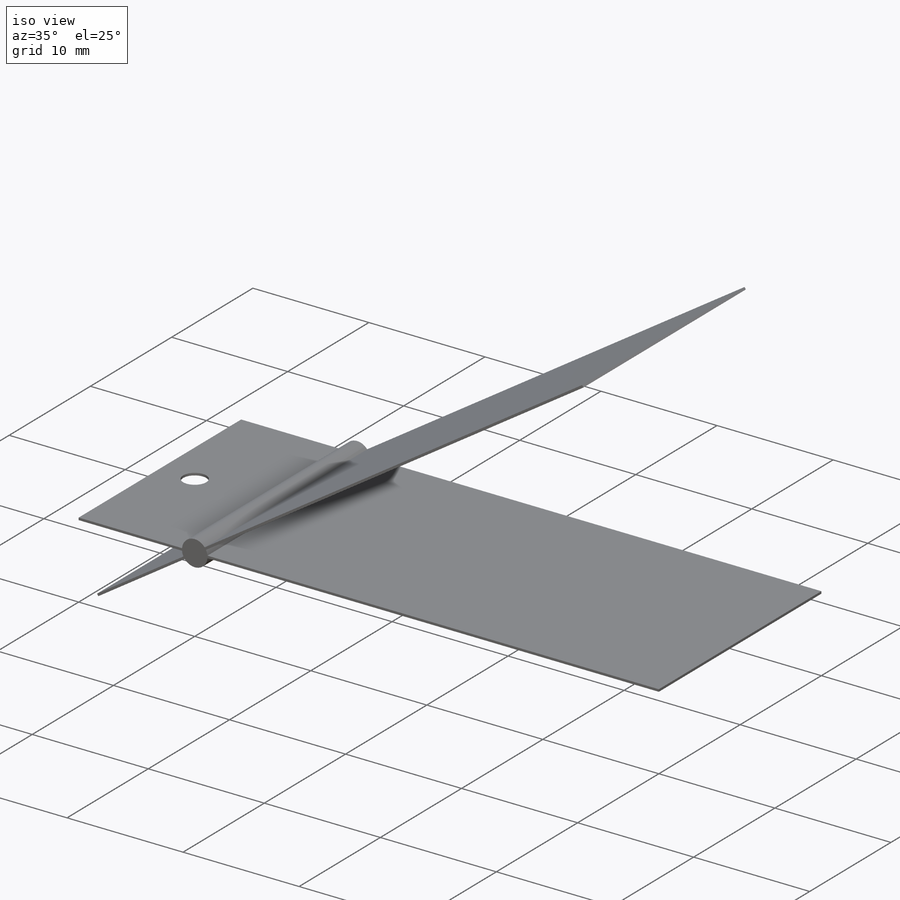
[diagram: iso view]
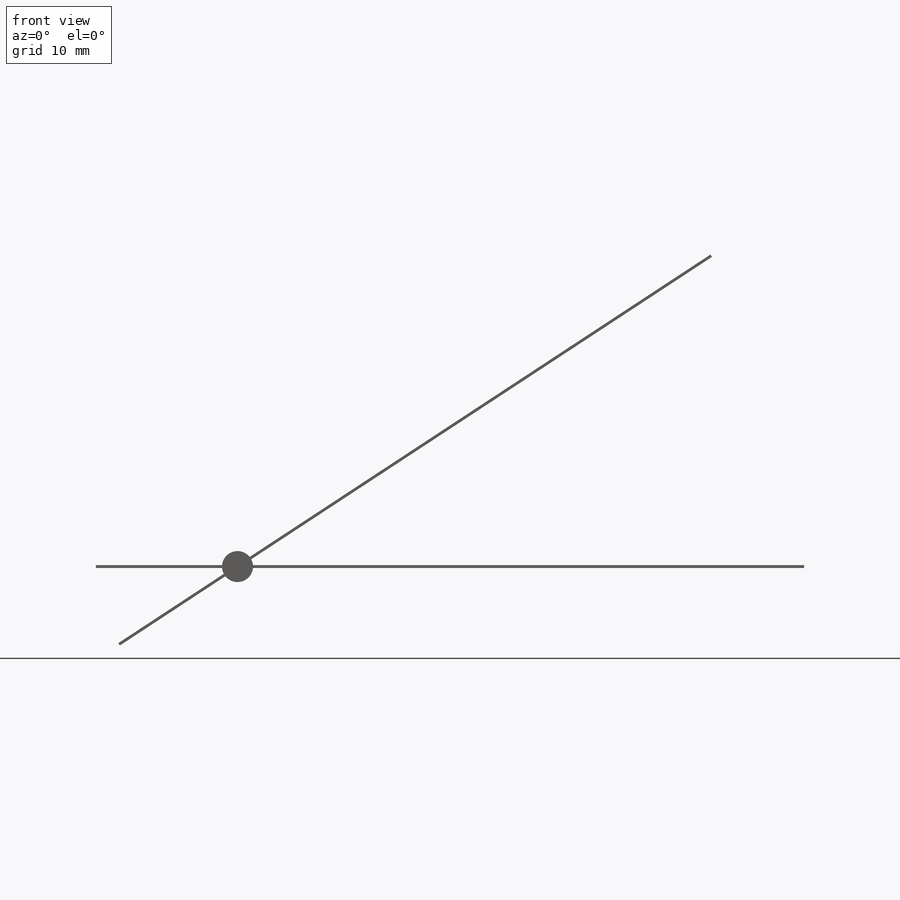
[diagram: front view]
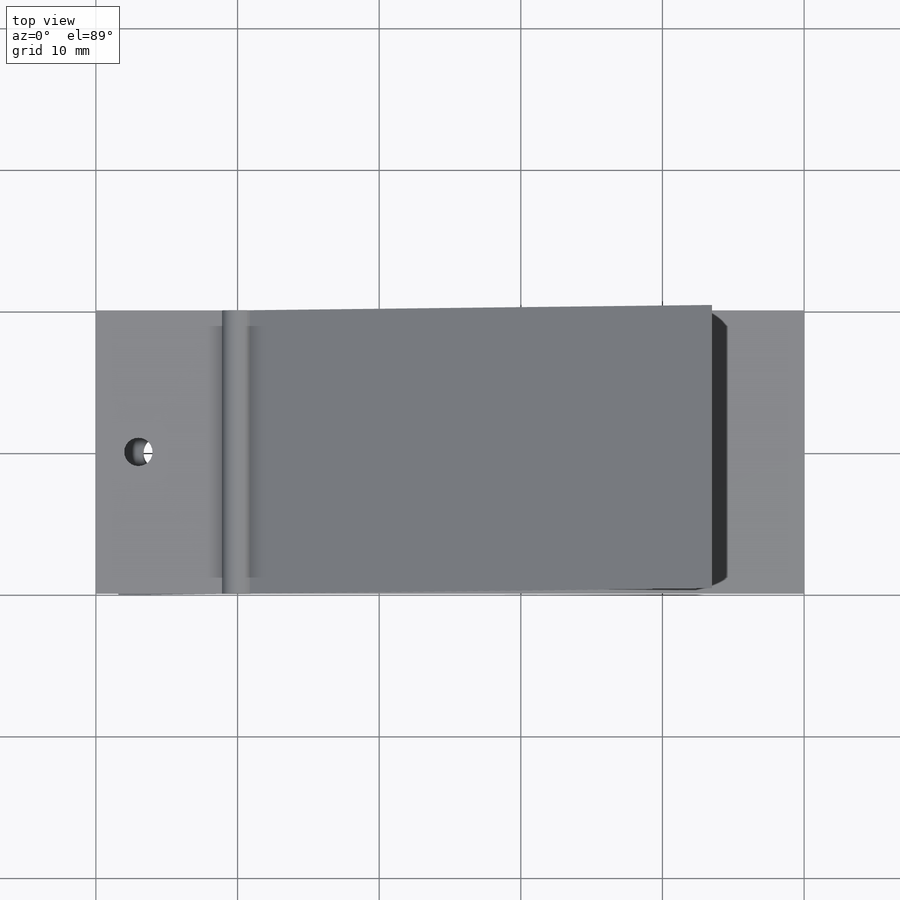
[diagram: top view]
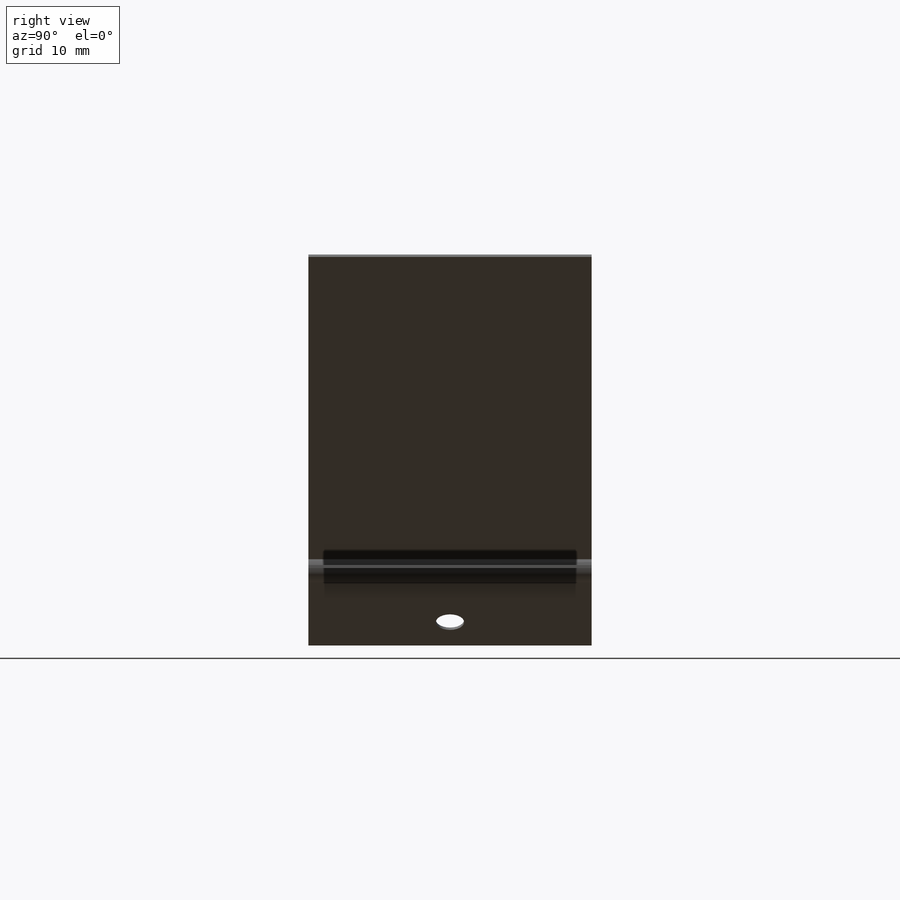
[diagram: right view]
SOLIDWORKS PART (.sldprt)
format: sldprt  version: not decoded by parser v0  size: 153,600 bytes
history: native  units: mm
features: plane x3, sketch x3, cut_extrude x2, material x1, extrude x1 (+13 scaffold rows collapsed)
feature tree (23):
  scaffold x13  (default folders/planes/origin — collapsed)
  material  "材质 <未指定>"
  plane  "前视基准面"
  plane  "上视基准面"
  plane  "右视基准面"
  sketch  "草图1"  dims[c1.D1=~7.364309mm c1.D5=2.0mm c2.D1=10.0mm c2.D2=10.0mm c2.D3=40.0mm c2.D4=40.0mm c2.D6=0.1mm c2.D7=0.1mm c2.D8=0.1mm c2.D9=0.1mm]
  extrude  "凸台-拉伸1"  Depth=20mm
  sketch  "草图2"  dims[D2=2.0mm D1=3.0mm]
  cut_extrude  "切除-拉伸1"  Depth=1mm
  sketch  "草图3"  dims[D2=2.0mm D1=3.0mm]
  cut_extrude  "切除-拉伸2"  Depth=1mm
decode coverage: 6 of 6 modeling features carry decoded parameters
note: ~ marks probable driven/reference dimensions
note: suppression state not decoded; provenance and decode notes live in map.json
